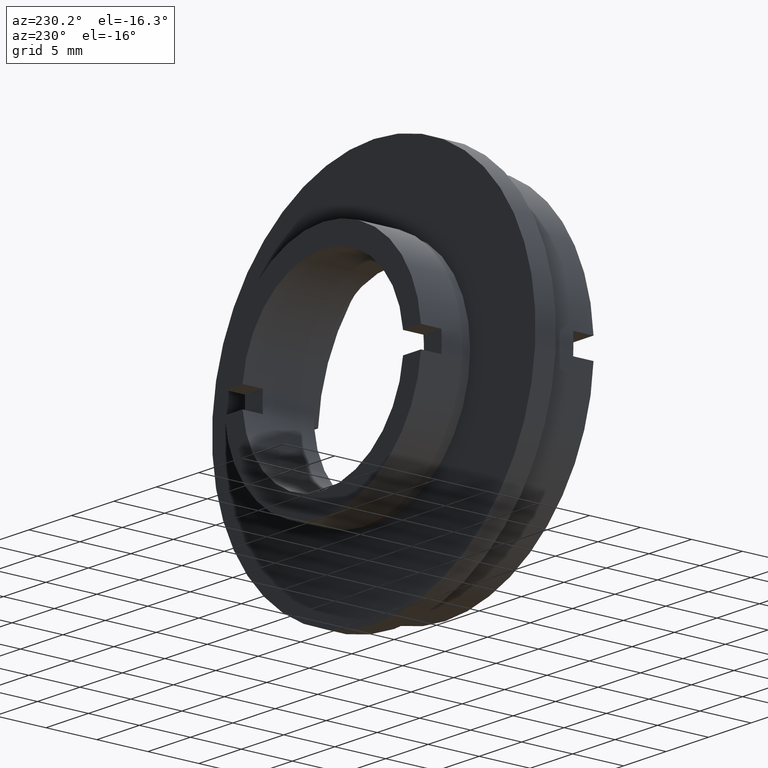
[diagram: clean part render]
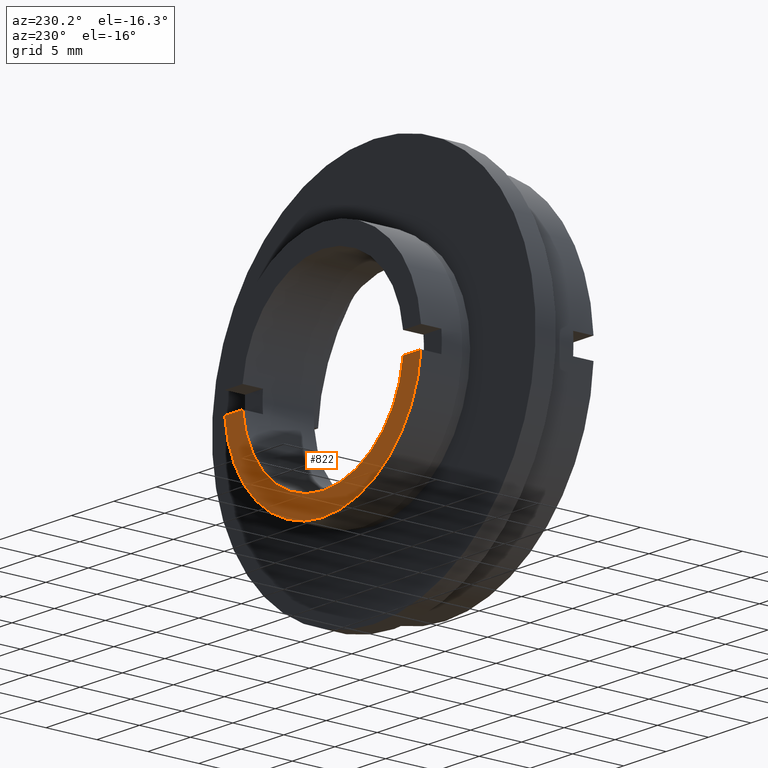
[diagram: same view with one face highlighted and labeled with its STEP entity id]
A machine part, auxiliary view. The second image highlights one B-rep face of the part: STEP entity #822.
In plain terms, the highlighted planar face has unit normal (-0, 1, 0).
Its self-contained STEP definition (entity closure, byte-faithful):
#29 = VERTEX_POINT ( 'NONE', #1214 ) ;
#36 = ORIENTED_EDGE ( 'NONE', *, *, #812, .F. ) ;
#40 = ORIENTED_EDGE ( 'NONE', *, *, #648, .F. ) ;
#85 = LINE ( 'NONE', #708, #1049 ) ;
#88 = VERTEX_POINT ( 'NONE', #386 ) ;
#154 = DIRECTION ( 'NONE',  ( -0.0000000000000000000, 1.000000000000000000, -0.0000000000000000000 ) ) ;
#223 = VERTEX_POINT ( 'NONE', #366 ) ;
#294 = EDGE_CURVE ( 'NONE', #88, #483, #895, .T. ) ;
#300 = CARTESIAN_POINT ( 'NONE',  ( 0.0000000000000000000, 12.00000000000000000, 0.0000000000000000000 ) ) ;
#302 = AXIS2_PLACEMENT_3D ( 'NONE', #567, #154, #910 ) ;
#305 = AXIS2_PLACEMENT_3D ( 'NONE', #901, #855, #324 ) ;
#317 = EDGE_LOOP ( 'NONE', ( #40, #980, #1162, #480, #1294, #36 ) ) ;
#324 = DIRECTION ( 'NONE',  ( 0.0000000000000000000, 0.0000000000000000000, 1.000000000000000000 ) ) ;
#333 = CARTESIAN_POINT ( 'NONE',  ( 0.0000000000000000000, 12.00000000000000000, 0.0000000000000000000 ) ) ;
#359 = VERTEX_POINT ( 'NONE', #1019 ) ;
#366 = CARTESIAN_POINT ( 'NONE',  ( 11.55681617055493000, 12.00000000000000000, -0.9999999999999978900 ) ) ;
#386 = CARTESIAN_POINT ( 'NONE',  ( 1.420590287010929300E-015, 12.00000000000000000, -11.59999999999999800 ) ) ;
#432 = LINE ( 'NONE', #924, #505 ) ;
#453 = PLANE ( 'NONE',  #305 ) ;
#480 = ORIENTED_EDGE ( 'NONE', *, *, #928, .F. ) ;
#481 = CIRCLE ( 'NONE', #509, 9.499999999999998200 ) ;
#483 = VERTEX_POINT ( 'NONE', #674 ) ;
#490 = EDGE_CURVE ( 'NONE', #223, #88, #533, .T. ) ;
#505 = VECTOR ( 'NONE', #902, 1000.000000000000000 ) ;
#509 = AXIS2_PLACEMENT_3D ( 'NONE', #909, #906, #904 ) ;
#533 = CIRCLE ( 'NONE', #731, 11.59999999999999800 ) ;
#567 = CARTESIAN_POINT ( 'NONE',  ( 0.0000000000000000000, 12.00000000000000000, 0.0000000000000000000 ) ) ;
#601 = DIRECTION ( 'NONE',  ( -1.000000000000000000, 0.0000000000000000000, 0.0000000000000000000 ) ) ;
#648 = EDGE_CURVE ( 'NONE', #223, #29, #432, .T. ) ;
#674 = CARTESIAN_POINT ( 'NONE',  ( -11.55681617055493000, 12.00000000000000000, -0.9999999999999978900 ) ) ;
#682 = CIRCLE ( 'NONE', #825, 9.499999999999998200 ) ;
#708 = CARTESIAN_POINT ( 'NONE',  ( -9.499999999999998200, 12.00000000000000000, -0.9999999999999978900 ) ) ;
#709 = FACE_OUTER_BOUND ( 'NONE', #317, .T. ) ;
#718 = CARTESIAN_POINT ( 'NONE',  ( 1.163414459189985300E-015, 12.00000000000000000, -9.499999999999998200 ) ) ;
#731 = AXIS2_PLACEMENT_3D ( 'NONE', #333, #741, #1256 ) ;
#741 = DIRECTION ( 'NONE',  ( -0.0000000000000000000, 1.000000000000000000, -0.0000000000000000000 ) ) ;
#808 = EDGE_CURVE ( 'NONE', #929, #359, #682, .T. ) ;
#812 = EDGE_CURVE ( 'NONE', #29, #929, #481, .T. ) ;
#822 = ADVANCED_FACE ( 'NONE', ( #709 ), #453, .T. ) ;
#825 = AXIS2_PLACEMENT_3D ( 'NONE', #300, #941, #930 ) ;
#855 = DIRECTION ( 'NONE',  ( -0.0000000000000000000, 1.000000000000000000, 0.0000000000000000000 ) ) ;
#895 = CIRCLE ( 'NONE', #302, 11.59999999999999800 ) ;
#901 = CARTESIAN_POINT ( 'NONE',  ( -9.499999999999998200, 12.00000000000000000, 0.0000000000000000000 ) ) ;
#902 = DIRECTION ( 'NONE',  ( -1.000000000000000000, 0.0000000000000000000, 0.0000000000000000000 ) ) ;
#904 = DIRECTION ( 'NONE',  ( 0.0000000000000000000, 0.0000000000000000000, 1.000000000000000000 ) ) ;
#906 = DIRECTION ( 'NONE',  ( -0.0000000000000000000, 1.000000000000000000, -0.0000000000000000000 ) ) ;
#909 = CARTESIAN_POINT ( 'NONE',  ( 0.0000000000000000000, 12.00000000000000000, 0.0000000000000000000 ) ) ;
#910 = DIRECTION ( 'NONE',  ( 0.0000000000000000000, 0.0000000000000000000, 1.000000000000000000 ) ) ;
#924 = CARTESIAN_POINT ( 'NONE',  ( -9.499999999999998200, 12.00000000000000000, -0.9999999999999978900 ) ) ;
#928 = EDGE_CURVE ( 'NONE', #359, #483, #85, .T. ) ;
#929 = VERTEX_POINT ( 'NONE', #718 ) ;
#930 = DIRECTION ( 'NONE',  ( 0.0000000000000000000, 0.0000000000000000000, 1.000000000000000000 ) ) ;
#941 = DIRECTION ( 'NONE',  ( -0.0000000000000000000, 1.000000000000000000, -0.0000000000000000000 ) ) ;
#980 = ORIENTED_EDGE ( 'NONE', *, *, #490, .T. ) ;
#1019 = CARTESIAN_POINT ( 'NONE',  ( -9.447221813845590800, 12.00000000000000000, -0.9999999999999978900 ) ) ;
#1049 = VECTOR ( 'NONE', #601, 1000.000000000000000 ) ;
#1162 = ORIENTED_EDGE ( 'NONE', *, *, #294, .T. ) ;
#1214 = CARTESIAN_POINT ( 'NONE',  ( 9.447221813845590800, 12.00000000000000000, -0.9999999999999978900 ) ) ;
#1256 = DIRECTION ( 'NONE',  ( 0.0000000000000000000, 0.0000000000000000000, 1.000000000000000000 ) ) ;
#1294 = ORIENTED_EDGE ( 'NONE', *, *, #808, .F. ) ;